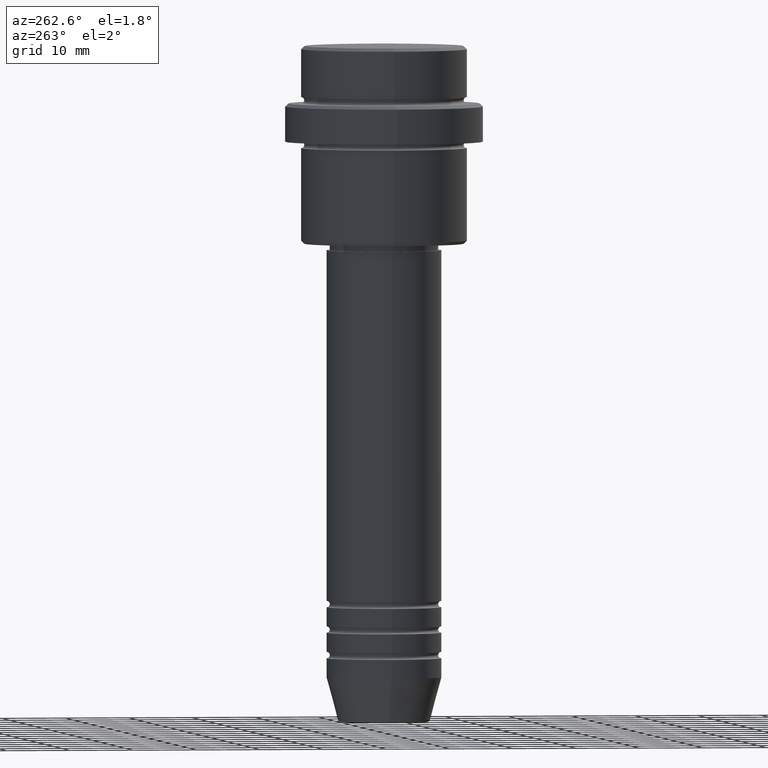
[diagram: clean part render]
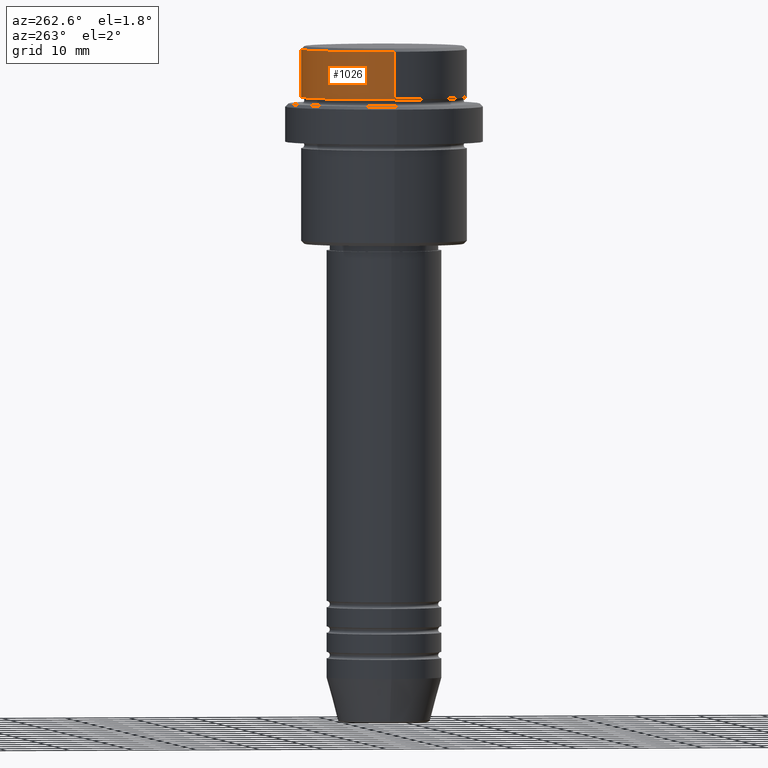
[diagram: same view with one face highlighted and labeled with its STEP entity id]
A machine part, auxiliary view. The second image highlights one B-rep face of the part: STEP entity #1026.
In plain terms, the highlighted cylindrical surface (partial cylindrical patch) has radius 13 mm, axis along (-0, -0, 1).
Its self-contained STEP definition (entity closure, byte-faithful):
#106 = CARTESIAN_POINT ( 'NONE',  ( 12.99999999999999822, 0.000000000000000000, -0.4999999999999622524 ) ) ;
#122 = DIRECTION ( 'NONE',  ( 1.000000000000000000, 0.000000000000000000, 0.000000000000000000 ) ) ;
#135 = CARTESIAN_POINT ( 'NONE',  ( -12.99999999999999822, 1.592040838891558898E-15, 0.000000000000000000 ) ) ;
#199 = DIRECTION ( 'NONE',  ( 0.000000000000000000, 0.000000000000000000, -1.000000000000000000 ) ) ;
#237 = CARTESIAN_POINT ( 'NONE',  ( 12.99999999999999822, 0.000000000000000000, 0.000000000000000000 ) ) ;
#306 = VECTOR ( 'NONE', #589, 1000.000000000000000 ) ;
#309 = CARTESIAN_POINT ( 'NONE',  ( -12.99999999999999822, 1.592040838891558898E-15, -0.4999999999999622524 ) ) ;
#334 = VECTOR ( 'NONE', #476, 1000.000000000000000 ) ;
#449 = EDGE_LOOP ( 'NONE', ( #1022, #1412, #1298, #899 ) ) ;
#464 = FACE_OUTER_BOUND ( 'NONE', #449, .T. ) ;
#476 = DIRECTION ( 'NONE',  ( -0.000000000000000000, -0.000000000000000000, 1.000000000000000000 ) ) ;
#553 = CARTESIAN_POINT ( 'NONE',  ( 0.000000000000000000, 0.000000000000000000, -0.4999999999999622524 ) ) ;
#578 = DIRECTION ( 'NONE',  ( 1.000000000000000000, 0.000000000000000000, 0.000000000000000000 ) ) ;
#589 = DIRECTION ( 'NONE',  ( -0.000000000000000000, -0.000000000000000000, 1.000000000000000000 ) ) ;
#674 = CARTESIAN_POINT ( 'NONE',  ( 12.99999999999999822, 0.000000000000000000, -7.999999999999998224 ) ) ;
#699 = CARTESIAN_POINT ( 'NONE',  ( 0.000000000000000000, 0.000000000000000000, 0.000000000000000000 ) ) ;
#716 = VERTEX_POINT ( 'NONE', #936 ) ;
#788 = DIRECTION ( 'NONE',  ( -0.000000000000000000, -0.000000000000000000, 1.000000000000000000 ) ) ;
#795 = CARTESIAN_POINT ( 'NONE',  ( 0.000000000000000000, 0.000000000000000000, -7.999999999999998224 ) ) ;
#819 = EDGE_CURVE ( 'NONE', #1277, #885, #1108, .T. ) ;
#885 = VERTEX_POINT ( 'NONE', #106 ) ;
#899 = ORIENTED_EDGE ( 'NONE', *, *, #1046, .F. ) ;
#904 = LINE ( 'NONE', #135, #334 ) ;
#925 = CYLINDRICAL_SURFACE ( 'NONE', #1063, 12.99999999999999822 ) ;
#936 = CARTESIAN_POINT ( 'NONE',  ( -12.99999999999999822, 1.592040838891558898E-15, -7.999999999999998224 ) ) ;
#982 = EDGE_CURVE ( 'NONE', #716, #1277, #904, .T. ) ;
#1016 = LINE ( 'NONE', #237, #306 ) ;
#1022 = ORIENTED_EDGE ( 'NONE', *, *, #1042, .T. ) ;
#1026 = ADVANCED_FACE ( 'NONE', ( #464 ), #925, .T. ) ;
#1042 = EDGE_CURVE ( 'NONE', #1052, #716, #1201, .T. ) ;
#1046 = EDGE_CURVE ( 'NONE', #1052, #885, #1016, .T. ) ;
#1052 = VERTEX_POINT ( 'NONE', #674 ) ;
#1063 = AXIS2_PLACEMENT_3D ( 'NONE', #699, #1138, #1344 ) ;
#1108 = CIRCLE ( 'NONE', #1151, 12.99999999999999822 ) ;
#1138 = DIRECTION ( 'NONE',  ( -0.000000000000000000, -0.000000000000000000, 1.000000000000000000 ) ) ;
#1151 = AXIS2_PLACEMENT_3D ( 'NONE', #553, #199, #122 ) ;
#1201 = CIRCLE ( 'NONE', #1223, 12.99999999999999822 ) ;
#1223 = AXIS2_PLACEMENT_3D ( 'NONE', #795, #788, #578 ) ;
#1277 = VERTEX_POINT ( 'NONE', #309 ) ;
#1298 = ORIENTED_EDGE ( 'NONE', *, *, #819, .T. ) ;
#1344 = DIRECTION ( 'NONE',  ( 1.000000000000000000, 0.000000000000000000, 0.000000000000000000 ) ) ;
#1412 = ORIENTED_EDGE ( 'NONE', *, *, #982, .T. ) ;